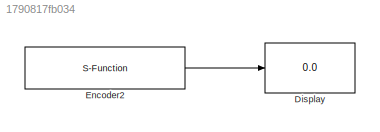
MODEL slx_1790817fb034
KIND model
CONFIG AbsTol = auto
CONFIG EnableMultiTasking = on
CONFIG FixedStep = auto
CONFIG MaxStep = auto
CONFIG MinStep = auto
CONFIG RelTol = 1e-3
CONFIG SampleTimeConstraint = Unconstrained
CONFIG SolverName = FixedStepAuto
CONFIG StartTime = 0.0
CONFIG StopTime = inf
BLOCK [Display] Display
  Decimation = 1
BLOCK [S-Function] Encoder2
  CopyFcn = set_param(gcbh,'LinkStatus','none')
  EnableBusSupport = off
  FunctionName = EncoderPieroXX
  InitFcn = try, set_param(gcb,'FunctionName','EncoderPieroXX'), end
  OpenFcn = sfunctionwizard(gcbh)
  PreSaveFcn = try, set_param(gcb,'FunctionName','EncoderPieroXX'), end
  SFcnIsStateOwnerBlock = off
  SFunctionDeploymentMode = off
  SFunctionModules = EncoderPieroXX_wrapper.cpp
LINE Encoder2:1 -> Display:1
